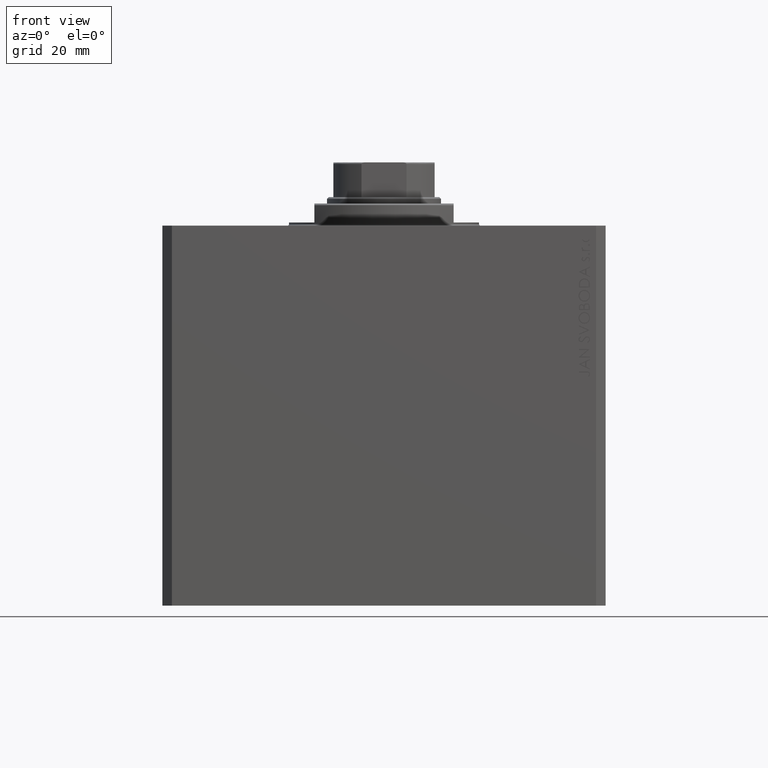
[diagram: clean part render]
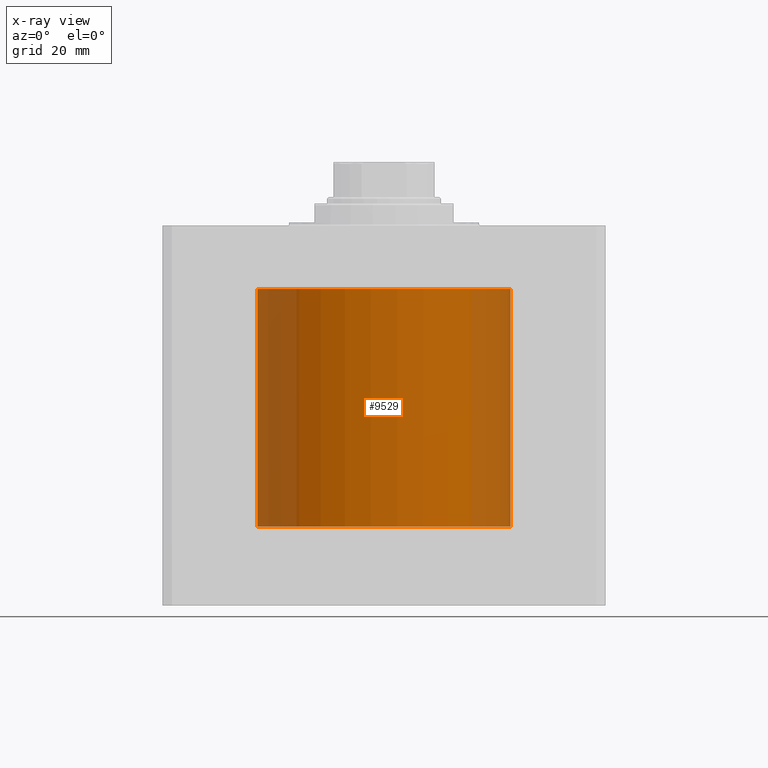
[diagram: x-ray — body ghosted, one internal face saturated and labeled with its STEP entity id]
A machine part, front view, then the same camera in x-ray: the body is ghosted and one INTERNAL B-rep face — a face not visible from any outside direction — is saturated and labeled: STEP entity #9529.
In plain terms, the highlighted cylindrical surface (partial cylindrical patch) has radius 40 mm, axis along (0, 0, 1).
Its self-contained STEP definition (entity closure, byte-faithful):
#470 = VERTEX_POINT ( 'NONE', #5354 ) ;
#576 = LINE ( 'NONE', #40080, #8063 ) ;
#921 = CARTESIAN_POINT ( 'NONE',  ( -40.00000000000000000, 4.898587196589413026E-15, -95.00000000000000000 ) ) ;
#1944 = CARTESIAN_POINT ( 'NONE',  ( 39.95498092565202342, -1.897899929052392132, -85.64434026527243304 ) ) ;
#2131 = B_SPLINE_CURVE_WITH_KNOTS ( 'NONE', 3,
 ( #5328, #38848, #9397, #34546, #6059, #20618, #15871, #43616, #46258, #25422, #2699, #40030, #32369, #7004, #13451, #39320, #17990, #29018, #21820, #36210, #14407, #10584, #25186, #3408, #35744, #13921, #31658, #46507 ),
 .UNSPECIFIED., .F., .F.,
 ( 4, 2, 2, 2, 2, 2, 2, 2, 2, 2, 2, 2, 2, 4 ),
 ( 0.006253887622122840731, 0.007035445425860899910, 0.007817003229598959088, 0.008207782131467996484, 0.008598561033337033879, 0.008989339935206071275, 0.009380118837075108670, 0.009770897738944146066, 0.01016167664081318346, 0.01055245554268222086, 0.01094323444455125825, 0.01133401334642029565, 0.01172479224828933304, 0.01250635005202740783 ),
 .UNSPECIFIED. ) ;
#2300 = VERTEX_POINT ( 'NONE', #10459 ) ;
#2412 = CARTESIAN_POINT ( 'NONE',  ( 39.94996871087637658, -1.999999999999533928, -85.13187480388944550 ) ) ;
#2699 = CARTESIAN_POINT ( 'NONE',  ( -39.95313607126405486, -1.935864075839068610, -35.51905568481351594 ) ) ;
#2901 = CARTESIAN_POINT ( 'NONE',  ( 39.96840300585797934, -1.591231583159740559, -86.21861287823932685 ) ) ;
#3289 = CARTESIAN_POINT ( 'NONE',  ( 39.98807331454906233, -1.005980880063963578, -83.25187843352546224 ) ) ;
#3408 = CARTESIAN_POINT ( 'NONE',  ( -39.98754073909765339, -1.004238739824514282, -33.26542551294939187 ) ) ;
#3605 = VECTOR ( 'NONE', #13503, 1000.000000000000000 ) ;
#4372 = DIRECTION ( 'NONE',  ( -0.000000000000000000, -0.000000000000000000, 1.000000000000000000 ) ) ;
#4969 = DIRECTION ( 'NONE',  ( -0.000000000000000000, -0.000000000000000000, 1.000000000000000000 ) ) ;
#5201 = CYLINDRICAL_SURFACE ( 'NONE', #27820, 40.00000000000000000 ) ;
#5328 = CARTESIAN_POINT ( 'NONE',  ( -40.00000000000000000, 4.898587189460959019E-15, -37.00000000000000000 ) ) ;
#5354 = CARTESIAN_POINT ( 'NONE',  ( -40.00000000000000000, 3.176717991102973922E-16, -32.99999999999999289 ) ) ;
#6058 = CARTESIAN_POINT ( 'NONE',  ( 40.00000000000000000, 0.000000000000000000, -95.00000000000000000 ) ) ;
#6059 = CARTESIAN_POINT ( 'NONE',  ( -39.98155010483453253, -1.228713488296116818, -36.59945425739334723 ) ) ;
#6729 = CARTESIAN_POINT ( 'NONE',  ( 39.95062491871536992, -1.987011453486452250, -85.26218355703861107 ) ) ;
#7004 = CARTESIAN_POINT ( 'NONE',  ( -39.94996329829713488, -2.000108116222454324, -34.86972341031480482 ) ) ;
#7193 = AXIS2_PLACEMENT_3D ( 'NONE', #20875, #35761, #14428 ) ;
#7595 = CARTESIAN_POINT ( 'NONE',  ( 40.00000000000000000, 3.022137594547156248E-17, -87.00000000000000000 ) ) ;
#7970 = CIRCLE ( 'NONE', #7193, 40.00000000000000000 ) ;
#8063 = VECTOR ( 'NONE', #22107, 1000.000000000000000 ) ;
#8171 = B_SPLINE_CURVE_WITH_KNOTS ( 'NONE', 3,
 ( #35212, #2412, #6729, #24184, #1944, #46464, #39034, #2901, #9356, #31378, #24906, #16993, #17477, #24660, #38555, #31615 ),
 .UNSPECIFIED., .F., .F.,
 ( 4, 2, 2, 2, 2, 2, 2, 4 ),
 ( 0.009381747249927151200, 0.009772322600189680894, 0.01016289795045221059, 0.01055347330071474028, 0.01094404865097726998, 0.01133462400123979967, 0.01172519935150232936, 0.01250635005202738875 ),
 .UNSPECIFIED. ) ;
#8336 = EDGE_CURVE ( 'NONE', #33738, #11747, #31794, .T. ) ;
#8798 = FACE_OUTER_BOUND ( 'NONE', #40241, .T. ) ;
#9356 = CARTESIAN_POINT ( 'NONE',  ( 39.97171421371167810, -1.506842900384648853, -86.32152895162371919 ) ) ;
#9397 = CARTESIAN_POINT ( 'NONE',  ( -39.99729065416362772, -0.5241133477467165847, -36.94760397200742830 ) ) ;
#9514 = CARTESIAN_POINT ( 'NONE',  ( 39.95963195732932860, -1.797313899295208905, -84.11296659975893419 ) ) ;
#9529 = ADVANCED_FACE ( 'NONE', ( #8798 ), #5201, .F. ) ;
#10256 = ORIENTED_EDGE ( 'NONE', *, *, #31148, .T. ) ;
#10459 = CARTESIAN_POINT ( 'NONE',  ( -40.00000000000000000, 4.898587196589413026E-15, -20.00000000000000355 ) ) ;
#10584 = CARTESIAN_POINT ( 'NONE',  ( -39.97822161943979324, -1.322993290506748076, -33.49443641325464682 ) ) ;
#10662 = ORIENTED_EDGE ( 'NONE', *, *, #12458, .T. ) ;
#10900 = VERTEX_POINT ( 'NONE', #6058 ) ;
#11017 = VERTEX_POINT ( 'NONE', #46735 ) ;
#11747 = VERTEX_POINT ( 'NONE', #42221 ) ;
#12233 = CARTESIAN_POINT ( 'NONE',  ( 40.00000000000000000, 0.000000000000000000, -95.00000000000000000 ) ) ;
#12458 = EDGE_CURVE ( 'NONE', #470, #2300, #576, .T. ) ;
#13325 = CARTESIAN_POINT ( 'NONE',  ( 39.95311872421955002, -1.936221022746515308, -84.48226116818536013 ) ) ;
#13451 = CARTESIAN_POINT ( 'NONE',  ( -39.95061496280469271, -1.987210616751022840, -34.73929722557829791 ) ) ;
#13503 = DIRECTION ( 'NONE',  ( -0.000000000000000000, -0.000000000000000000, 1.000000000000000000 ) ) ;
#13921 = CARTESIAN_POINT ( 'NONE',  ( -39.99725439346650546, -0.5268097663652565599, -33.05312383049329128 ) ) ;
#13939 = CARTESIAN_POINT ( 'NONE',  ( -40.00000000000000000, 4.898587196589413026E-15, -95.00000000000000000 ) ) ;
#14407 = CARTESIAN_POINT ( 'NONE',  ( -39.97169201868642574, -1.507432341118292163, -33.67913638197957482 ) ) ;
#14428 = DIRECTION ( 'NONE',  ( 1.000000000000000000, 0.000000000000000000, 0.000000000000000000 ) ) ;
#15871 = CARTESIAN_POINT ( 'NONE',  ( -39.96845429220498858, -1.589953990140400064, -36.22030678780492963 ) ) ;
#16351 = ORIENTED_EDGE ( 'NONE', *, *, #26797, .T. ) ;
#16919 = CARTESIAN_POINT ( 'NONE',  ( 39.98153325464723196, -1.229265378214520199, -83.40094686079743269 ) ) ;
#16993 = CARTESIAN_POINT ( 'NONE',  ( 39.98755274677900218, -1.003757231862751009, -86.73484839080963127 ) ) ;
#17477 = CARTESIAN_POINT ( 'NONE',  ( 39.99034025637237022, -0.8872121321392498761, -86.79716463504581725 ) ) ;
#17990 = CARTESIAN_POINT ( 'NONE',  ( -39.95496063565278888, -1.898325849076777372, -34.35689967467779127 ) ) ;
#18247 = EDGE_CURVE ( 'NONE', #2300, #11017, #41481, .T. ) ;
#20618 = CARTESIAN_POINT ( 'NONE',  ( -39.97176586693763767, -1.505474969618711079, -36.32308080074695056 ) ) ;
#20734 = CARTESIAN_POINT ( 'NONE',  ( 39.96843082707852801, -1.590542785129184233, -83.78045409442967184 ) ) ;
#20875 = CARTESIAN_POINT ( 'NONE',  ( 0.000000000000000000, 0.000000000000000000, -95.00000000000000000 ) ) ;
#21453 = CARTESIAN_POINT ( 'NONE',  ( 39.96238287616974816, -1.735869807532471221, -83.99806458370963469 ) ) ;
#21820 = CARTESIAN_POINT ( 'NONE',  ( -39.96234813593243018, -1.736659235415104252, -33.99946690219611156 ) ) ;
#22107 = DIRECTION ( 'NONE',  ( -0.000000000000000000, -0.000000000000000000, 1.000000000000000000 ) ) ;
#22693 = LINE ( 'NONE', #921, #40918 ) ;
#24184 = CARTESIAN_POINT ( 'NONE',  ( 39.95311763711179509, -1.936243008321337555, -85.51760771496813618 ) ) ;
#24581 = CARTESIAN_POINT ( 'NONE',  ( 40.00000000000000711, -0.2611582470416159429, -83.00000000000005684 ) ) ;
#24660 = CARTESIAN_POINT ( 'NONE',  ( 39.99725731907661697, -0.5265393650770479050, -86.94693108982437479 ) ) ;
#24906 = CARTESIAN_POINT ( 'NONE',  ( 39.98148221579612027, -1.221876869789999764, -86.58878709545477648 ) ) ;
#25186 = CARTESIAN_POINT ( 'NONE',  ( -39.98146574706436240, -1.222418309695456173, -33.41162423406408521 ) ) ;
#25389 = ORIENTED_EDGE ( 'NONE', *, *, #36453, .T. ) ;
#25422 = CARTESIAN_POINT ( 'NONE',  ( -39.95501191335212354, -1.897248253400663609, -35.64621551410552058 ) ) ;
#26392 = DIRECTION ( 'NONE',  ( 1.000000000000000000, 0.000000000000000000, 0.000000000000000000 ) ) ;
#26797 = EDGE_CURVE ( 'NONE', #47388, #39822, #22693, .T. ) ;
#27459 = DIRECTION ( 'NONE',  ( 1.000000000000000000, 0.000000000000000000, 0.000000000000000000 ) ) ;
#27820 = AXIS2_PLACEMENT_3D ( 'NONE', #34187, #46364, #27459 ) ;
#27860 = CARTESIAN_POINT ( 'NONE',  ( -40.00000000000000000, 4.898587189460959019E-15, -37.00000000000000000 ) ) ;
#27937 = CARTESIAN_POINT ( 'NONE',  ( 39.94996871087638368, -1.999999999999534372, -84.86798774079922225 ) ) ;
#28657 = CARTESIAN_POINT ( 'NONE',  ( 39.94996871087638368, -1.999999999999533928, -84.99999999999998579 ) ) ;
#29018 = CARTESIAN_POINT ( 'NONE',  ( -39.95959991158211011, -1.798025398075954628, -34.11437946863432558 ) ) ;
#30823 = CARTESIAN_POINT ( 'NONE',  ( 40.00000000000000000, -7.123019543693126097E-24, -82.99999999999998579 ) ) ;
#30925 = ORIENTED_EDGE ( 'NONE', *, *, #47356, .F. ) ;
#31148 = EDGE_CURVE ( 'NONE', #11747, #43526, #8171, .T. ) ;
#31378 = CARTESIAN_POINT ( 'NONE',  ( 39.97824023806944638, -1.322429648898208576, -86.50605249580961242 ) ) ;
#31536 = CARTESIAN_POINT ( 'NONE',  ( 39.97174371281857930, -1.506063825800100453, -83.67758258078892197 ) ) ;
#31615 = CARTESIAN_POINT ( 'NONE',  ( 40.00000000000000000, 3.022137594547156248E-17, -87.00000000000000000 ) ) ;
#31658 = CARTESIAN_POINT ( 'NONE',  ( -40.00000000000000000, -0.2642733961107794904, -32.99999999999999289 ) ) ;
#31794 = B_SPLINE_CURVE_WITH_KNOTS ( 'NONE', 3,
 ( #30823, #24581, #35615, #3289, #16919, #31536, #20734, #21453, #9514, #46133, #13325, #43023, #27937, #28657 ),
 .UNSPECIFIED., .F., .F.,
 ( 4, 2, 2, 2, 2, 2, 4 ),
 ( 0.006253887622123758400, 0.007035852529074620478, 0.007817817436025482555, 0.008208799889500899283, 0.008599782342976317745, 0.008990764796451734472, 0.009381747249927151200 ),
 .UNSPECIFIED. ) ;
#32369 = CARTESIAN_POINT ( 'NONE',  ( -39.94997419154996265, -1.999890523593354619, -35.13357529726873452 ) ) ;
#32875 = CARTESIAN_POINT ( 'NONE',  ( 0.000000000000000000, 0.000000000000000000, -20.00000000000000355 ) ) ;
#33738 = VERTEX_POINT ( 'NONE', #44384 ) ;
#34187 = CARTESIAN_POINT ( 'NONE',  ( 0.000000000000000000, 0.000000000000000000, -95.00000000000000000 ) ) ;
#34546 = CARTESIAN_POINT ( 'NONE',  ( -39.98808477704317710, -1.005500044224703959, -36.74837801808690330 ) ) ;
#35212 = CARTESIAN_POINT ( 'NONE',  ( 39.94996871087638368, -1.999999999999533928, -84.99999999999998579 ) ) ;
#35615 = CARTESIAN_POINT ( 'NONE',  ( 39.99728772807394250, -0.5243847237203292933, -83.05245097526227482 ) ) ;
#35744 = CARTESIAN_POINT ( 'NONE',  ( -39.99033090231615262, -0.8876408111740532458, -33.20304211855953014 ) ) ;
#35761 = DIRECTION ( 'NONE',  ( 0.000000000000000000, 0.000000000000000000, 1.000000000000000000 ) ) ;
#35972 = EDGE_CURVE ( 'NONE', #33738, #11017, #37019, .T. ) ;
#36210 = CARTESIAN_POINT ( 'NONE',  ( -39.96837961631823788, -1.591818043399304550, -33.78214652093856074 ) ) ;
#36453 = EDGE_CURVE ( 'NONE', #39822, #470, #2131, .T. ) ;
#37019 = LINE ( 'NONE', #46317, #3605 ) ;
#38100 = EDGE_CURVE ( 'NONE', #10900, #43526, #41211, .T. ) ;
#38555 = CARTESIAN_POINT ( 'NONE',  ( 39.99999999999999289, -0.2641357395636182437, -86.99999999999994316 ) ) ;
#38625 = ORIENTED_EDGE ( 'NONE', *, *, #38100, .F. ) ;
#38848 = CARTESIAN_POINT ( 'NONE',  ( -39.99999999999999289, -0.2610222839562321706, -37.00000000000000000 ) ) ;
#38973 = ORIENTED_EDGE ( 'NONE', *, *, #8336, .T. ) ;
#39034 = CARTESIAN_POINT ( 'NONE',  ( 39.96237188306369603, -1.736113553211090066, -86.00147143175053088 ) ) ;
#39320 = CARTESIAN_POINT ( 'NONE',  ( -39.95310035905028201, -1.936598471871985083, -34.48370712704680585 ) ) ;
#39822 = VERTEX_POINT ( 'NONE', #27860 ) ;
#39931 = ORIENTED_EDGE ( 'NONE', *, *, #35972, .F. ) ;
#39977 = AXIS2_PLACEMENT_3D ( 'NONE', #32875, #44815, #26392 ) ;
#40030 = CARTESIAN_POINT ( 'NONE',  ( -39.95063264744342746, -1.986857498184113169, -35.26341185617021523 ) ) ;
#40080 = CARTESIAN_POINT ( 'NONE',  ( -40.00000000000000000, 4.898587196589413026E-15, -95.00000000000000000 ) ) ;
#40241 = EDGE_LOOP ( 'NONE', ( #30925, #16351, #25389, #10662, #45148, #39931, #38973, #10256, #38625 ) ) ;
#40918 = VECTOR ( 'NONE', #4969, 1000.000000000000000 ) ;
#41211 = LINE ( 'NONE', #12233, #47203 ) ;
#41481 = CIRCLE ( 'NONE', #39977, 40.00000000000000000 ) ;
#42221 = CARTESIAN_POINT ( 'NONE',  ( 39.94996871087638368, -1.999999999999533928, -84.99999999999998579 ) ) ;
#43023 = CARTESIAN_POINT ( 'NONE',  ( 39.95062265781891142, -1.987057345190007540, -84.73806784500418132 ) ) ;
#43526 = VERTEX_POINT ( 'NONE', #7595 ) ;
#43616 = CARTESIAN_POINT ( 'NONE',  ( -39.96240665200651421, -1.735323248996501588, -36.00287365536161843 ) ) ;
#44384 = CARTESIAN_POINT ( 'NONE',  ( 40.00000000000000000, -7.123019543693126097E-24, -82.99999999999998579 ) ) ;
#44815 = DIRECTION ( 'NONE',  ( 0.000000000000000000, 0.000000000000000000, 1.000000000000000000 ) ) ;
#45148 = ORIENTED_EDGE ( 'NONE', *, *, #18247, .T. ) ;
#46133 = CARTESIAN_POINT ( 'NONE',  ( 39.95499164081206800, -1.897673944715563277, -84.35502007373054312 ) ) ;
#46258 = CARTESIAN_POINT ( 'NONE',  ( -39.95965519480901662, -1.796798442540265661, -35.88806575352695916 ) ) ;
#46317 = CARTESIAN_POINT ( 'NONE',  ( 40.00000000000000000, 0.000000000000000000, -95.00000000000000000 ) ) ;
#46364 = DIRECTION ( 'NONE',  ( -0.000000000000000000, -0.000000000000000000, 1.000000000000000000 ) ) ;
#46464 = CARTESIAN_POINT ( 'NONE',  ( 39.95962314440981800, -1.797510241044922186, -85.88665407656374384 ) ) ;
#46507 = CARTESIAN_POINT ( 'NONE',  ( -40.00000000000000000, 3.176717991102973922E-16, -32.99999999999999289 ) ) ;
#46735 = CARTESIAN_POINT ( 'NONE',  ( 40.00000000000000000, 0.000000000000000000, -20.00000000000000355 ) ) ;
#47203 = VECTOR ( 'NONE', #4372, 1000.000000000000000 ) ;
#47356 = EDGE_CURVE ( 'NONE', #47388, #10900, #7970, .T. ) ;
#47388 = VERTEX_POINT ( 'NONE', #13939 ) ;